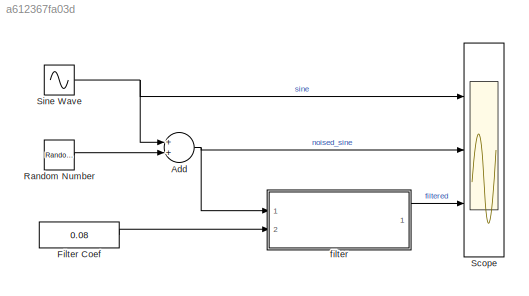
MODEL slx_a612367fa03d
KIND model
BLOCK [Sum] Add
  InputSameDT = off
  OutDataTypeStr = Inherit: Inherit via internal rule
  Ports = [2, 1]
  SaturateOnIntegerOverflow = off
BLOCK [Constant] Filter Coef
  Value = 0.08
BLOCK [RandomNumber] Random Number
  Variance = 0.1
BLOCK [Scope] Scope
  DataFormat = StructureWithTime
  Floating = off
  NumInputPorts = 3
  Ports = [3]
  SampleTime = 0
  ShowLegends = off
  YMax = 6~6~6
  YMin = -5~-5~-5
BLOCK [Sin] Sine Wave
  Amplitude = 5
  Frequency = 0.5
  Ports = [0, 1]
  SampleTime = 0
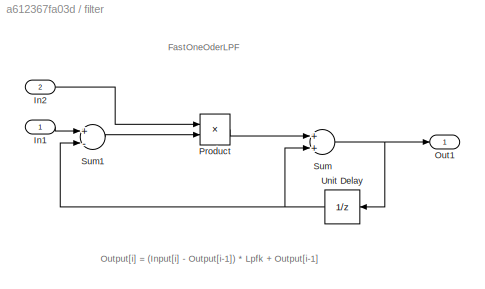
BLOCK [SubSystem] filter
  FunctionWithSeparateData = off
  MaskHideContents = off
  MinAlgLoopOccurrences = off
  Opaque = off
  Ports = [2, 1]
  PropExecContextOutsideSubsystem = off
  RTWSystemCode = Auto
  RequestExecContextInheritance = off
BLOCK [Inport] filter/In1
  IconDisplay = Port number
BLOCK [Inport] filter/In2
  IconDisplay = Port number
  Port = 2
BLOCK [Outport] filter/Out1
  IconDisplay = Port number
BLOCK [Product] filter/Product
  InputSameDT = off
  OutDataTypeStr = Inherit: Inherit via internal rule
  Ports = [2, 1]
  SaturateOnIntegerOverflow = off
BLOCK [Sum] filter/Sum
  InputSameDT = off
  OutDataTypeStr = Inherit: Inherit via internal rule
  Ports = [2, 1]
  SaturateOnIntegerOverflow = off
BLOCK [Sum] filter/Sum1
  InputSameDT = off
  Inputs = +-
  OutDataTypeStr = Inherit: Inherit via internal rule
  Ports = [2, 1]
  SaturateOnIntegerOverflow = off
BLOCK [UnitDelay] filter/Unit Delay
  SampleTime = -1
ANNOTATION filter: FastOneOderLPF
ANNOTATION filter: Output[i] = (Input[i] - Output[i-1]) * Lpfk + Output[i-1]
NET Add:1 -> Scope:2, filter:1
LINE Filter Coef:1 -> filter:2
LINE Random Number:1 -> Add:2
NET Sine Wave:1 -> Add:1, Scope:1
LINE filter/In1:1 -> filter/Sum1:1
LINE filter/In2:1 -> filter/Product:1
LINE filter/Product:1 -> filter/Sum:1
LINE filter/Sum1:1 -> filter/Product:2
NET filter/Sum:1 -> filter/Out1:1, filter/Unit Delay:1
NET filter/Unit Delay:1 -> filter/Sum1:2, filter/Sum:2
LINE filter:1 -> Scope:3
note: NET lines group one-source signal fan-out (src -> all destinations, sorted); 1:1 wires keep LINE
